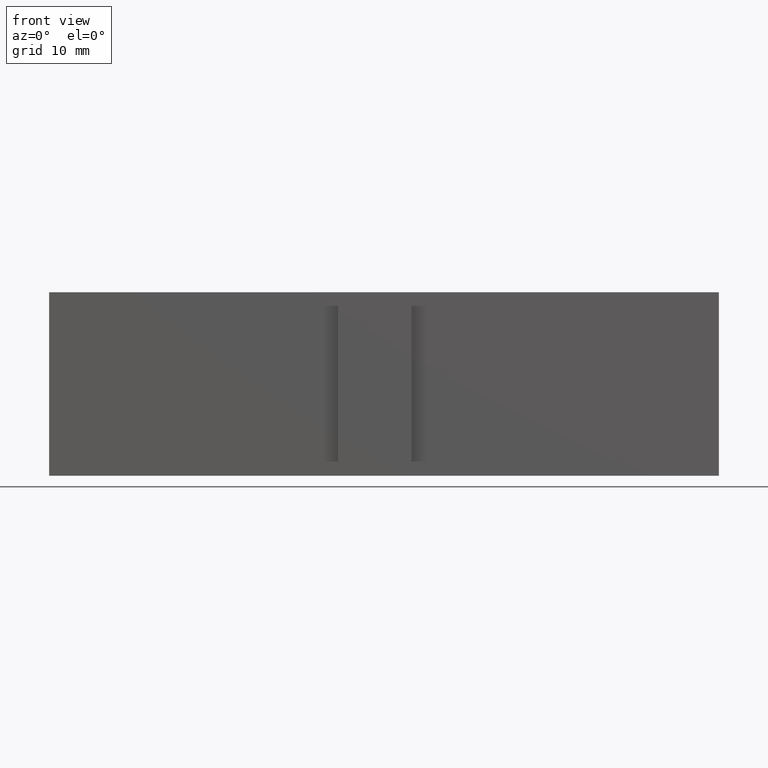
[diagram: clean part render]
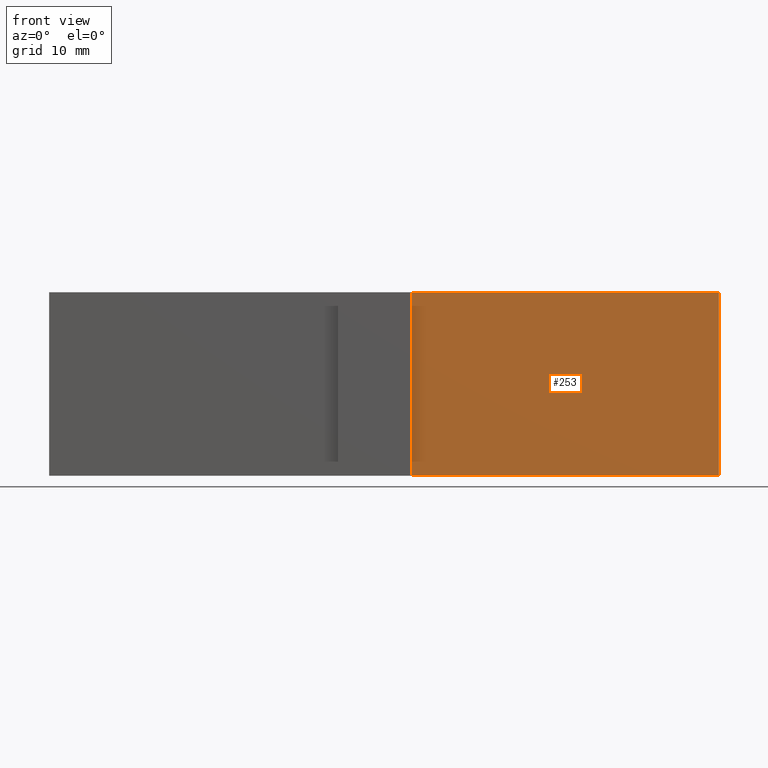
[diagram: same view with one face highlighted and labeled with its STEP entity id]
A machine part, front view. The second image highlights one B-rep face of the part: STEP entity #253.
In plain terms, the highlighted planar face has unit normal (0, -1, 0).
Its self-contained STEP definition (entity closure, byte-faithful):
#27=FACE_OUTER_BOUND('',#40,.T.);
#40=EDGE_LOOP('',(#214,#215,#216,#217));
#43=LINE('',#358,#76);
#55=LINE('',#381,#88);
#73=LINE('',#417,#106);
#74=LINE('',#419,#107);
#76=VECTOR('',#296,10.);
#88=VECTOR('',#310,10.);
#106=VECTOR('',#346,10.);
#107=VECTOR('',#349,10.);
#108=VERTEX_POINT('',#354);
#110=VERTEX_POINT('',#357);
#119=VERTEX_POINT('',#377);
#129=VERTEX_POINT('',#415);
#131=EDGE_CURVE('',#110,#108,#43,.T.);
#143=EDGE_CURVE('',#119,#110,#55,.T.);
#161=EDGE_CURVE('',#108,#129,#73,.T.);
#162=EDGE_CURVE('',#129,#119,#74,.T.);
#214=ORIENTED_EDGE('',*,*,#162,.T.);
#215=ORIENTED_EDGE('',*,*,#143,.T.);
#216=ORIENTED_EDGE('',*,*,#131,.T.);
#217=ORIENTED_EDGE('',*,*,#161,.T.);
#240=PLANE('',#289);
#253=ADVANCED_FACE('',(#27),#240,.T.);
#289=AXIS2_PLACEMENT_3D('',#418,#347,#348);
#296=DIRECTION('',(1.,1.33599599045378E-16,0.));
#310=DIRECTION('',(0.,0.,-1.));
#346=DIRECTION('',(0.,0.,1.));
#347=DIRECTION('center_axis',(1.33599599045378E-16,-1.,0.));
#348=DIRECTION('ref_axis',(0.,0.,-1.));
#349=DIRECTION('',(-1.,-1.33599599045378E-16,0.));
#354=CARTESIAN_POINT('',(2.22044604925031E-15,2.22044604925031E-15,-10.));
#357=CARTESIAN_POINT('',(-33.5,-2.25514051876985E-15,-10.));
#358=CARTESIAN_POINT('',(2.22044604925031E-15,2.22044604925031E-15,-10.));
#377=CARTESIAN_POINT('',(-33.5,-2.25514051876985E-15,10.));
#381=CARTESIAN_POINT('',(-33.5,-2.25514051876985E-15,0.));
#415=CARTESIAN_POINT('',(2.22044604925031E-15,2.22044604925031E-15,10.));
#417=CARTESIAN_POINT('',(2.22044604925031E-15,2.22044604925031E-15,0.));
#418=CARTESIAN_POINT('Origin',(2.22044604925031E-15,2.22044604925031E-15,
0.));
#419=CARTESIAN_POINT('',(2.22044604925031E-15,2.22044604925031E-15,10.));